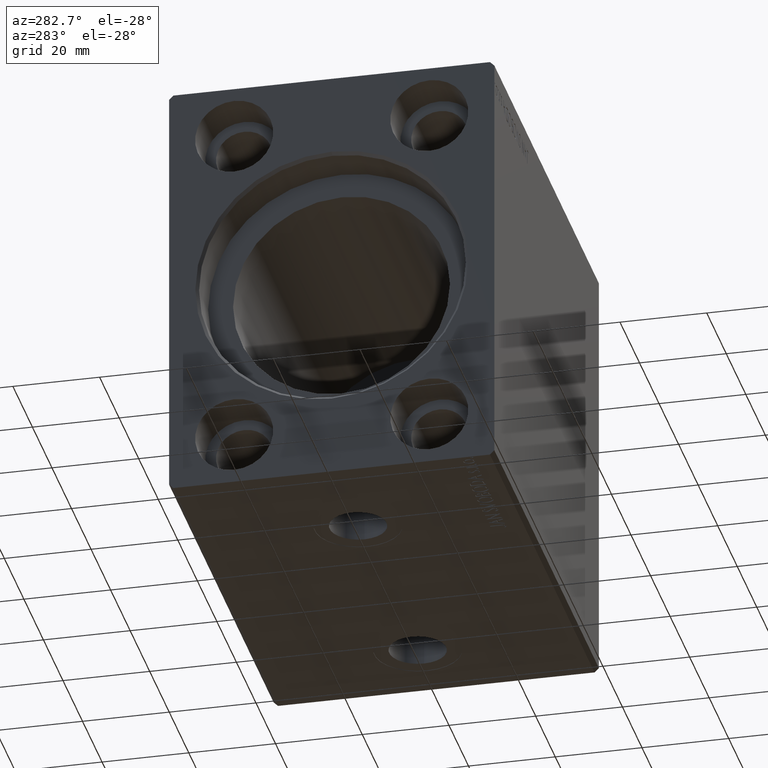
[diagram: clean part render]
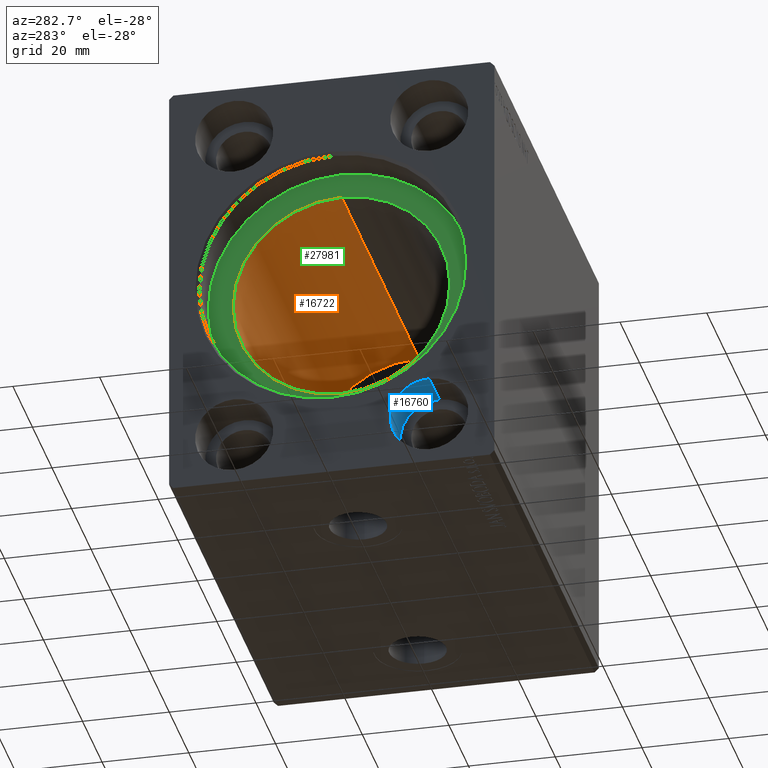
[diagram: same view with three faces highlighted in distinct colors, each labeled with its STEP entity id]
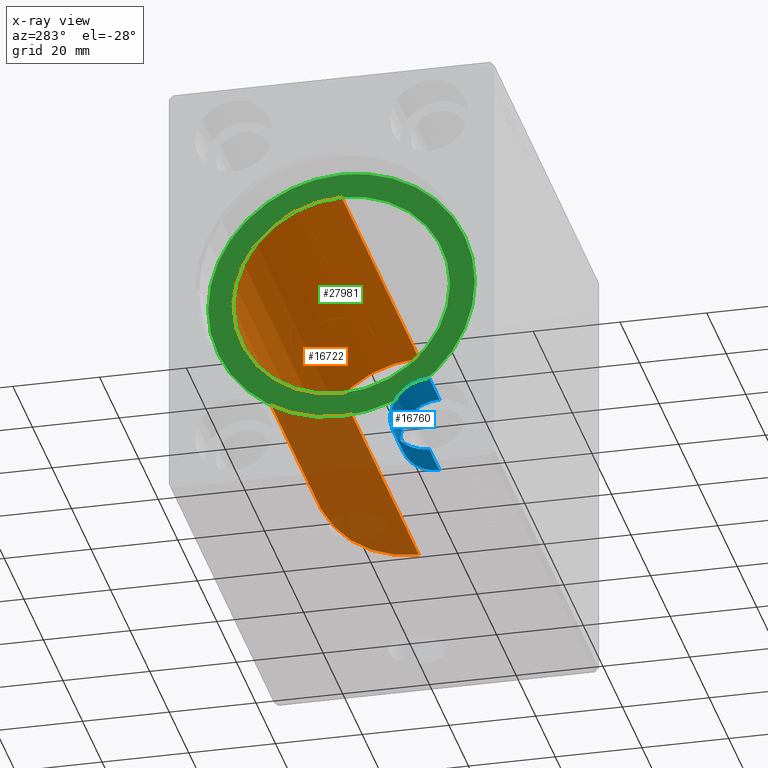
[diagram: x-ray of the same camera — body ghosted, the three highlighted faces saturated]
A machine part, auxiliary view with three faces highlighted in distinct colors.
The next image is the same camera in x-ray (body ghosted, the three faces saturated) — at least one of them is partly hidden behind the body in this view.
Their STEP definitions:

[orange] entity #16722 — the highlighted cylindrical surface (partial cylindrical patch) has radius 25 mm, axis along (-1, -0, -0).
#379 = CARTESIAN_POINT ( 'NONE',  ( 89.20000000000000284, 0.000000000000000000, 0.000000000000000000 ) ) ;
#769 = EDGE_CURVE ( 'NONE', #31600, #40529, #27920, .T. ) ;
#2148 = FACE_OUTER_BOUND ( 'NONE', #22129, .T. ) ;
#2623 = ORIENTED_EDGE ( 'NONE', *, *, #769, .F. ) ;
#2662 = DIRECTION ( 'NONE',  ( -1.000000000000000000, -0.000000000000000000, -0.000000000000000000 ) ) ;
#3227 = AXIS2_PLACEMENT_3D ( 'NONE', #379, #22938, #10057 ) ;
#3782 = ORIENTED_EDGE ( 'NONE', *, *, #33916, .T. ) ;
#3875 = CARTESIAN_POINT ( 'NONE',  ( 9.999999999999994671, 0.000000000000000000, 0.000000000000000000 ) ) ;
#7349 = EDGE_CURVE ( 'NONE', #31600, #16578, #38746, .T. ) ;
#10057 = DIRECTION ( 'NONE',  ( 0.000000000000000000, 0.000000000000000000, 1.000000000000000000 ) ) ;
#11535 = ORIENTED_EDGE ( 'NONE', *, *, #7349, .T. ) ;
#11611 = CARTESIAN_POINT ( 'NONE',  ( 89.20000000000000284, 3.061616997868383043E-15, -25.00000000000000000 ) ) ;
#14197 = ORIENTED_EDGE ( 'NONE', *, *, #17801, .F. ) ;
#14446 = AXIS2_PLACEMENT_3D ( 'NONE', #3875, #16973, #30067 ) ;
#15156 = CIRCLE ( 'NONE', #14446, 25.00000000000000000 ) ;
#16479 = CARTESIAN_POINT ( 'NONE',  ( 9.999999999999994671, 3.061616997868383043E-15, -25.00000000000000000 ) ) ;
#16578 = VERTEX_POINT ( 'NONE', #16767 ) ;
#16722 = ADVANCED_FACE ( 'NONE', ( #2148 ), #28347, .F. ) ;
#16767 = CARTESIAN_POINT ( 'NONE',  ( 9.999999999999994671, 0.000000000000000000, 25.00000000000000000 ) ) ;
#16973 = DIRECTION ( 'NONE',  ( -1.000000000000000000, 0.000000000000000000, 0.000000000000000000 ) ) ;
#17801 = EDGE_CURVE ( 'NONE', #40529, #26079, #19876, .T. ) ;
#18479 = DIRECTION ( 'NONE',  ( -1.000000000000000000, -0.000000000000000000, -0.000000000000000000 ) ) ;
#19876 = LINE ( 'NONE', #33201, #23803 ) ;
#22129 = EDGE_LOOP ( 'NONE', ( #14197, #2623, #11535, #3782 ) ) ;
#22938 = DIRECTION ( 'NONE',  ( -1.000000000000000000, 0.000000000000000000, 0.000000000000000000 ) ) ;
#23803 = VECTOR ( 'NONE', #39650, 1000.000000000000000 ) ;
#25749 = CARTESIAN_POINT ( 'NONE',  ( 89.20000000000000284, 0.000000000000000000, 0.000000000000000000 ) ) ;
#26079 = VERTEX_POINT ( 'NONE', #16479 ) ;
#27920 = CIRCLE ( 'NONE', #3227, 25.00000000000000000 ) ;
#28347 = CYLINDRICAL_SURFACE ( 'NONE', #39542, 25.00000000000000000 ) ;
#29278 = CARTESIAN_POINT ( 'NONE',  ( 89.20000000000000284, 0.000000000000000000, 25.00000000000000000 ) ) ;
#30067 = DIRECTION ( 'NONE',  ( 0.000000000000000000, 0.000000000000000000, 1.000000000000000000 ) ) ;
#31600 = VERTEX_POINT ( 'NONE', #36483 ) ;
#33201 = CARTESIAN_POINT ( 'NONE',  ( 89.20000000000000284, 3.061616997868383043E-15, -25.00000000000000000 ) ) ;
#33916 = EDGE_CURVE ( 'NONE', #16578, #26079, #15156, .T. ) ;
#36483 = CARTESIAN_POINT ( 'NONE',  ( 89.20000000000000284, 0.000000000000000000, 25.00000000000000000 ) ) ;
#38652 = VECTOR ( 'NONE', #2662, 1000.000000000000000 ) ;
#38746 = LINE ( 'NONE', #29278, #38652 ) ;
#38865 = DIRECTION ( 'NONE',  ( 0.000000000000000000, 0.000000000000000000, 1.000000000000000000 ) ) ;
#39542 = AXIS2_PLACEMENT_3D ( 'NONE', #25749, #18479, #38865 ) ;
#39650 = DIRECTION ( 'NONE',  ( -1.000000000000000000, -0.000000000000000000, -0.000000000000000000 ) ) ;
#40529 = VERTEX_POINT ( 'NONE', #11611 ) ;

[blue] entity #16760 — the highlighted cylindrical surface (partial cylindrical patch) has radius 9 mm, axis along (-1, -0, -0).
#840 = LINE ( 'NONE', #24255, #4589 ) ;
#2554 = CARTESIAN_POINT ( 'NONE',  ( 0.000000000000000000, -22.50000000000000000, -38.00000000000000000 ) ) ;
#2992 = ORIENTED_EDGE ( 'NONE', *, *, #34118, .F. ) ;
#3000 = VERTEX_POINT ( 'NONE', #17539 ) ;
#4589 = VECTOR ( 'NONE', #36737, 1000.000000000000000 ) ;
#4762 = VERTEX_POINT ( 'NONE', #9176 ) ;
#5159 = DIRECTION ( 'NONE',  ( 1.000000000000000000, -0.000000000000000000, -0.000000000000000000 ) ) ;
#5588 = CYLINDRICAL_SURFACE ( 'NONE', #14147, 9.000000000000001776 ) ;
#6065 = VERTEX_POINT ( 'NONE', #29456 ) ;
#7926 = DIRECTION ( 'NONE',  ( 1.000000000000000000, -0.000000000000000000, -0.000000000000000000 ) ) ;
#8586 = EDGE_CURVE ( 'NONE', #4762, #6065, #18529, .T. ) ;
#9176 = CARTESIAN_POINT ( 'NONE',  ( 10.33000000000000007, -22.50000000000000000, -28.99999999999999645 ) ) ;
#10401 = VERTEX_POINT ( 'NONE', #23522 ) ;
#11734 = AXIS2_PLACEMENT_3D ( 'NONE', #2554, #5159, #31565 ) ;
#14136 = DIRECTION ( 'NONE',  ( 0.000000000000000000, 0.000000000000000000, -1.000000000000000000 ) ) ;
#14147 = AXIS2_PLACEMENT_3D ( 'NONE', #38244, #29175, #22526 ) ;
#14883 = CARTESIAN_POINT ( 'NONE',  ( 10.33000000000000007, -22.50000000000000000, -28.99999999999999645 ) ) ;
#16760 = ADVANCED_FACE ( 'NONE', ( #25131 ), #5588, .F. ) ;
#17539 = CARTESIAN_POINT ( 'NONE',  ( 0.000000000000000000, -22.50000000000000000, -47.00000000000000000 ) ) ;
#18277 = ORIENTED_EDGE ( 'NONE', *, *, #37555, .T. ) ;
#18529 = LINE ( 'NONE', #14883, #37996 ) ;
#18733 = DIRECTION ( 'NONE',  ( -1.000000000000000000, -0.000000000000000000, -0.000000000000000000 ) ) ;
#21979 = EDGE_CURVE ( 'NONE', #10401, #3000, #840, .T. ) ;
#22526 = DIRECTION ( 'NONE',  ( 0.000000000000000000, 0.000000000000000000, 1.000000000000000000 ) ) ;
#23522 = CARTESIAN_POINT ( 'NONE',  ( 10.33000000000000007, -22.50000000000000000, -47.00000000000000000 ) ) ;
#24255 = CARTESIAN_POINT ( 'NONE',  ( 10.33000000000000007, -22.50000000000000000, -47.00000000000000000 ) ) ;
#25131 = FACE_OUTER_BOUND ( 'NONE', #35722, .T. ) ;
#29175 = DIRECTION ( 'NONE',  ( -1.000000000000000000, -0.000000000000000000, -0.000000000000000000 ) ) ;
#29456 = CARTESIAN_POINT ( 'NONE',  ( 0.000000000000000000, -22.50000000000000000, -28.99999999999999645 ) ) ;
#31565 = DIRECTION ( 'NONE',  ( 0.000000000000000000, 0.000000000000000000, -1.000000000000000000 ) ) ;
#33126 = ORIENTED_EDGE ( 'NONE', *, *, #8586, .T. ) ;
#34118 = EDGE_CURVE ( 'NONE', #3000, #6065, #35062, .T. ) ;
#34357 = ORIENTED_EDGE ( 'NONE', *, *, #21979, .F. ) ;
#35062 = CIRCLE ( 'NONE', #11734, 9.000000000000001776 ) ;
#35722 = EDGE_LOOP ( 'NONE', ( #34357, #18277, #33126, #2992 ) ) ;
#36583 = CIRCLE ( 'NONE', #37264, 9.000000000000001776 ) ;
#36737 = DIRECTION ( 'NONE',  ( -1.000000000000000000, -0.000000000000000000, -0.000000000000000000 ) ) ;
#36927 = CARTESIAN_POINT ( 'NONE',  ( 10.33000000000000007, -22.50000000000000000, -38.00000000000000000 ) ) ;
#37264 = AXIS2_PLACEMENT_3D ( 'NONE', #36927, #7926, #14136 ) ;
#37555 = EDGE_CURVE ( 'NONE', #10401, #4762, #36583, .T. ) ;
#37996 = VECTOR ( 'NONE', #18733, 1000.000000000000000 ) ;
#38244 = CARTESIAN_POINT ( 'NONE',  ( 10.33000000000000007, -22.50000000000000000, -38.00000000000000000 ) ) ;

[green] entity #27981 — the highlighted planar face has unit normal (-1, 0, 0).
#1971 = AXIS2_PLACEMENT_3D ( 'NONE', #39014, #19456, #22258 ) ;
#3437 = CIRCLE ( 'NONE', #9604, 25.00000000000000000 ) ;
#3875 = CARTESIAN_POINT ( 'NONE',  ( 9.999999999999994671, 0.000000000000000000, 0.000000000000000000 ) ) ;
#9062 = CARTESIAN_POINT ( 'NONE',  ( 10.00000000000000000, 0.000000000000000000, 0.000000000000000000 ) ) ;
#9376 = FACE_OUTER_BOUND ( 'NONE', #15099, .T. ) ;
#9582 = FACE_BOUND ( 'NONE', #21443, .T. ) ;
#9604 = AXIS2_PLACEMENT_3D ( 'NONE', #32937, #36161, #42379 ) ;
#12044 = AXIS2_PLACEMENT_3D ( 'NONE', #24093, #23451, #33349 ) ;
#12282 = DIRECTION ( 'NONE',  ( 0.000000000000000000, 0.000000000000000000, 1.000000000000000000 ) ) ;
#12378 = PLANE ( 'NONE',  #1971 ) ;
#13524 = EDGE_CURVE ( 'NONE', #36963, #33929, #32604, .T. ) ;
#13667 = ORIENTED_EDGE ( 'NONE', *, *, #13524, .T. ) ;
#14152 = ORIENTED_EDGE ( 'NONE', *, *, #33916, .F. ) ;
#14446 = AXIS2_PLACEMENT_3D ( 'NONE', #3875, #16973, #30067 ) ;
#15099 = EDGE_LOOP ( 'NONE', ( #13667, #41061 ) ) ;
#15156 = CIRCLE ( 'NONE', #14446, 25.00000000000000000 ) ;
#16479 = CARTESIAN_POINT ( 'NONE',  ( 9.999999999999994671, 3.061616997868383043E-15, -25.00000000000000000 ) ) ;
#16578 = VERTEX_POINT ( 'NONE', #16767 ) ;
#16767 = CARTESIAN_POINT ( 'NONE',  ( 9.999999999999994671, 0.000000000000000000, 25.00000000000000000 ) ) ;
#16973 = DIRECTION ( 'NONE',  ( -1.000000000000000000, 0.000000000000000000, 0.000000000000000000 ) ) ;
#19456 = DIRECTION ( 'NONE',  ( -1.000000000000000000, 0.000000000000000000, 0.000000000000000000 ) ) ;
#21443 = EDGE_LOOP ( 'NONE', ( #14152, #22558 ) ) ;
#22258 = DIRECTION ( 'NONE',  ( 0.000000000000000000, 0.000000000000000000, 1.000000000000000000 ) ) ;
#22558 = ORIENTED_EDGE ( 'NONE', *, *, #32235, .F. ) ;
#23451 = DIRECTION ( 'NONE',  ( -1.000000000000000000, 0.000000000000000000, 0.000000000000000000 ) ) ;
#24093 = CARTESIAN_POINT ( 'NONE',  ( 10.00000000000000000, 0.000000000000000000, 0.000000000000000000 ) ) ;
#26079 = VERTEX_POINT ( 'NONE', #16479 ) ;
#27278 = CARTESIAN_POINT ( 'NONE',  ( 10.00000000000000000, 3.765788907378111328E-15, -30.75000000000000355 ) ) ;
#27981 = ADVANCED_FACE ( 'NONE', ( #9582, #9376 ), #12378, .T. ) ;
#28700 = EDGE_CURVE ( 'NONE', #33929, #36963, #35621, .T. ) ;
#30067 = DIRECTION ( 'NONE',  ( 0.000000000000000000, 0.000000000000000000, 1.000000000000000000 ) ) ;
#32235 = EDGE_CURVE ( 'NONE', #26079, #16578, #3437, .T. ) ;
#32604 = CIRCLE ( 'NONE', #12044, 30.75000000000000355 ) ;
#32937 = CARTESIAN_POINT ( 'NONE',  ( 9.999999999999994671, 0.000000000000000000, 0.000000000000000000 ) ) ;
#33349 = DIRECTION ( 'NONE',  ( 0.000000000000000000, 0.000000000000000000, 1.000000000000000000 ) ) ;
#33430 = CARTESIAN_POINT ( 'NONE',  ( 10.00000000000000000, 0.000000000000000000, 30.75000000000000355 ) ) ;
#33916 = EDGE_CURVE ( 'NONE', #16578, #26079, #15156, .T. ) ;
#33929 = VERTEX_POINT ( 'NONE', #27278 ) ;
#35621 = CIRCLE ( 'NONE', #40405, 30.75000000000000355 ) ;
#36161 = DIRECTION ( 'NONE',  ( -1.000000000000000000, 0.000000000000000000, 0.000000000000000000 ) ) ;
#36963 = VERTEX_POINT ( 'NONE', #33430 ) ;
#39014 = CARTESIAN_POINT ( 'NONE',  ( 10.00000000000000000, 0.000000000000000000, 0.000000000000000000 ) ) ;
#40405 = AXIS2_PLACEMENT_3D ( 'NONE', #9062, #41708, #12282 ) ;
#41061 = ORIENTED_EDGE ( 'NONE', *, *, #28700, .T. ) ;
#41708 = DIRECTION ( 'NONE',  ( -1.000000000000000000, 0.000000000000000000, 0.000000000000000000 ) ) ;
#42379 = DIRECTION ( 'NONE',  ( 0.000000000000000000, 0.000000000000000000, 1.000000000000000000 ) ) ;